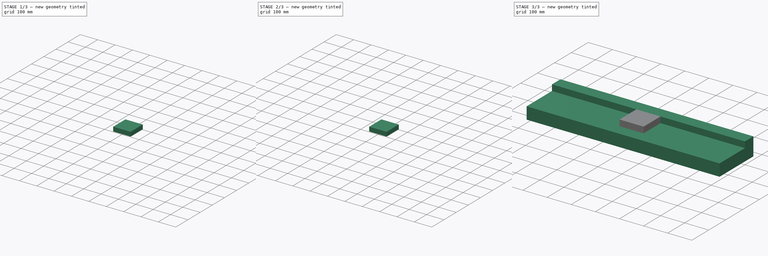
[diagram: build sequence overview — one tinted view per stage of 3, left to right]
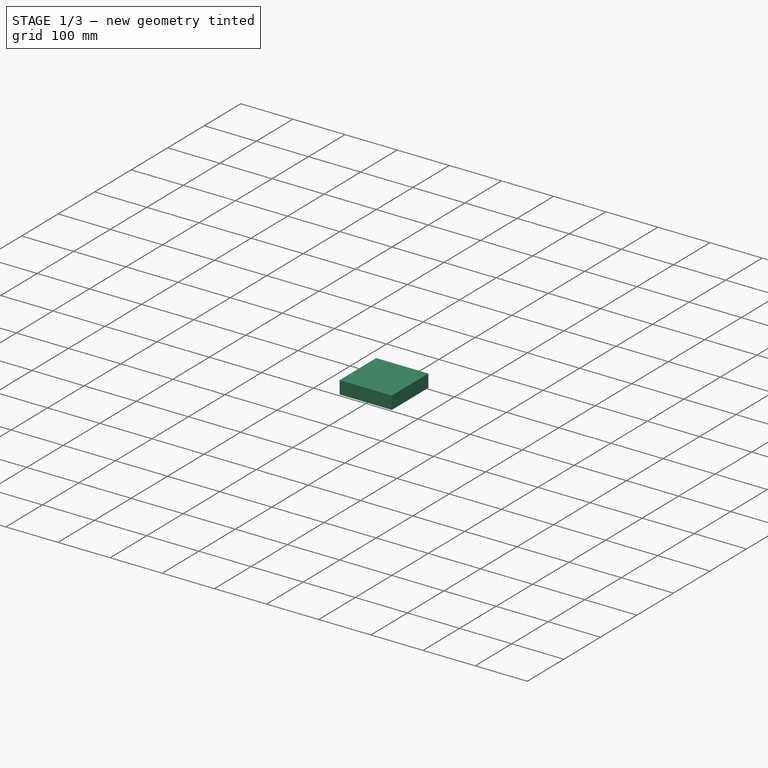
[diagram: stage 1 of 3 — iso view after this stage's code; geometry added in this stage tinted green]
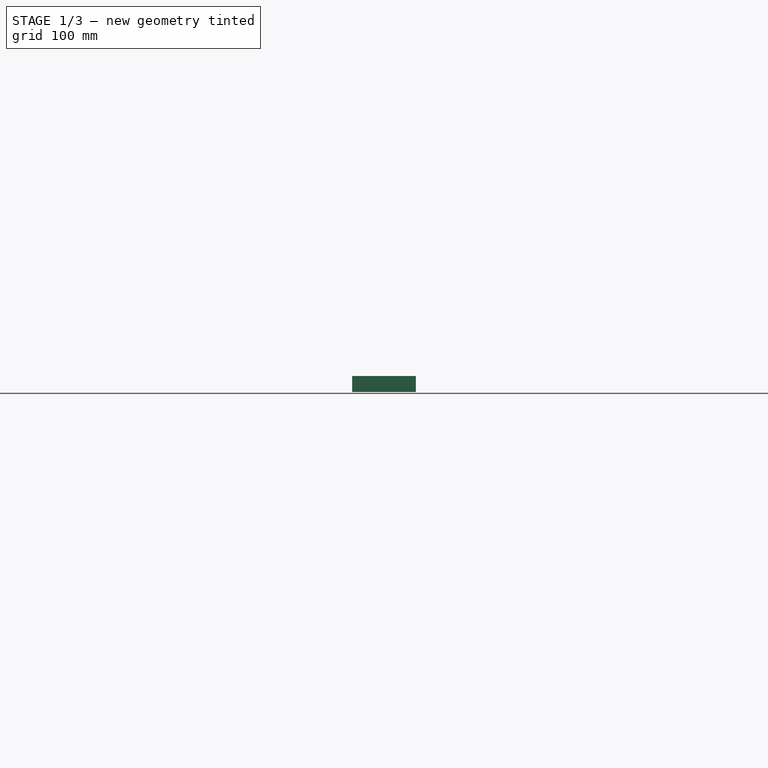
[diagram: stage 1 of 3 — front view after this stage's code; geometry added in this stage tinted green]
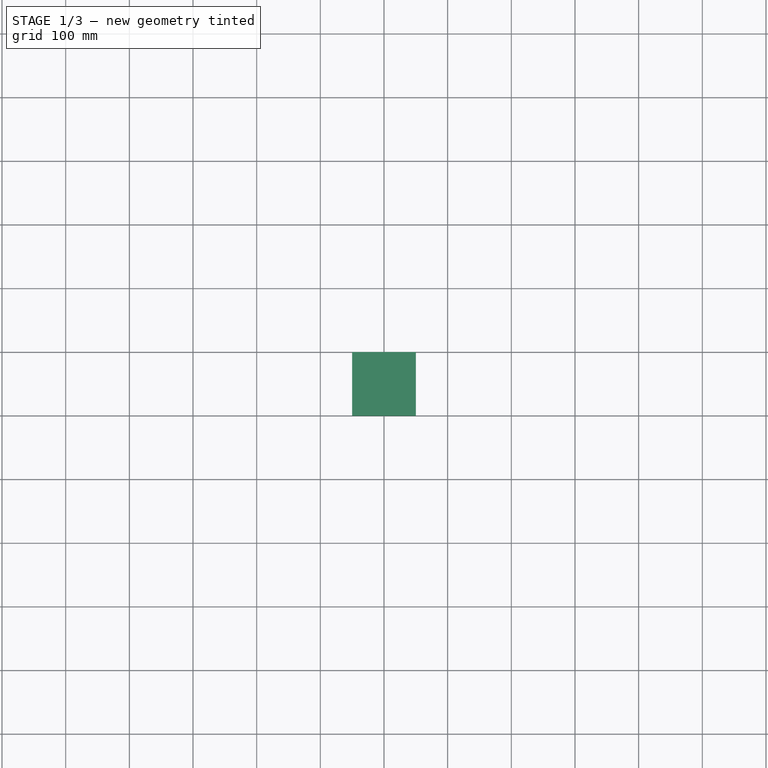
[diagram: stage 1 of 3 — top view after this stage's code; geometry added in this stage tinted green]
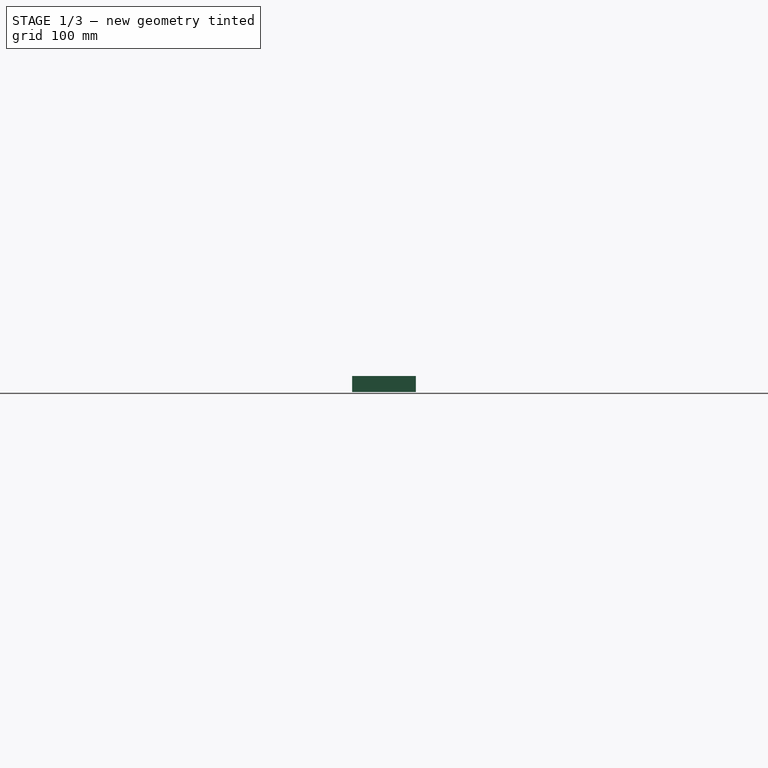
[diagram: stage 1 of 3 — right view after this stage's code; geometry added in this stage tinted green]
FCSTD DOCUMENT  (FreeCAD 2020.12.03R23076 +2885 (Git))
Label: Modular Ramp v2
License: All rights reserved
LicenseURL: http://en.wikipedia.org/wiki/All_rights_reserved
objects: Sketcher::SketchObject×7, PartDesign::Body×5, PartDesign::Pad×4, PartDesign::Plane×2, PartDesign::ShapeBinder×1, PartDesign::Extrusion×1, PartDesign::Pocket×1
note: 33 computed .brp shape members not serialized (recipe doc carries the construction recipe); baked Part::Feature solids carry a one-line shape summary decoded from their .brp

FEATURE [Sketcher::SketchObject] CopySketch001
  ExternalGeometry = -> [ShapeBinder]
  Placement = pos=(0,0,0) rot=(0.57735,0.57735,0.57735;2.0944rad)
  sketch-geometry (4):
    g0: LineSegment StartX=0 StartY=25 StartZ=0 EndX=0 EndY=0 EndZ=0
    g1: LineSegment StartX=0 StartY=0 StartZ=0 EndX=-100 EndY=0 EndZ=0
    g2: LineSegment StartX=-100 StartY=0 StartZ=0 EndX=-100 EndY=25 EndZ=0
    g3: LineSegment StartX=-100 StartY=25 StartZ=0 EndX=0 EndY=25 EndZ=0
  constraints (9):
    c: Coincident(g0,g1)
    c: Coincident(g1,g2)
    c: Vertical(g2)
    c: Coincident(g3,g0)
    c: Horizontal(g3)
    c: Coincident(g0,g-1)
    c: Horizontal(g1)
    c: DistanceX(g1,g1) = 100
    c: Coincident(g3,g2)
FEATURE [PartDesign::Body] Body002  label="Fill01"
  ExportMode = 0
  Group = -> [Sketch003,Pad001,CopySketch001]
  Origin = -> Origin002
  Tip = -> Pad001
  _ExportChildren = -> [Pad001,CopySketch001]
  _GroupVersion = 1
FEATURE [PartDesign::Pad] Pad002
  ClaimChildren = false
  Direction = (1,1,1)
  Fit = 0
  FitJoin = 0
  InnerFit = 0
  InnerFitJoin = 0
  InnerTaperAngle = 0
  InnerTaperAngleRev = 0
  Length = 100
  Length2 = 100
  Midplane = true
  NewSolid = false
  Placement = pos=(0,0,0) rot=(0.57735,0.57735,0.57735;2.0944rad)
  Profile = -> Sketch001
  Suppress = false
  Type = 0
FEATURE [PartDesign::Body] Body003  label="Fill02"
  ExportMode = 0
  Group = -> [Sketch004,Pad003]
  Origin = -> Origin003
  Tip = -> Pad003
  _ExportChildren = -> [Pad003]
  _GroupVersion = 1
FEATURE [PartDesign::Pocket] Pocket
  BaseFeature = -> Pad002
  ClaimChildren = false
  Fit = 0
  FitJoin = 0
  InnerFit = 0
  InnerFitJoin = 0
  InnerTaperAngle = 0
  InnerTaperAngleRev = 0
  Length = 23
  Length2 = 100
  NewSolid = false
  Placement = pos=(0,0,0) rot=(0.57735,0.57735,0.57735;2.0944rad)
  Profile = -> Sketch004
  Reversed = true
  Suppress = true
  Type = 0
  expr: Length = DatumPlane.AttachmentOffset.Base.z - DatumPlane001.AttachmentOffset.Base.z
FEATURE [PartDesign::Body] Body001  label="Ramp01"
  ExportMode = 0
  Group = -> [ShapeBinder,Sketch001,Sketch002,Pad002,Sketch004,Pocket]
  Origin = -> Origin001
  Tip = -> Pocket
  _ExportChildren = -> [ShapeBinder,Sketch002,Pad002,Pocket]
  _GroupVersion = 1
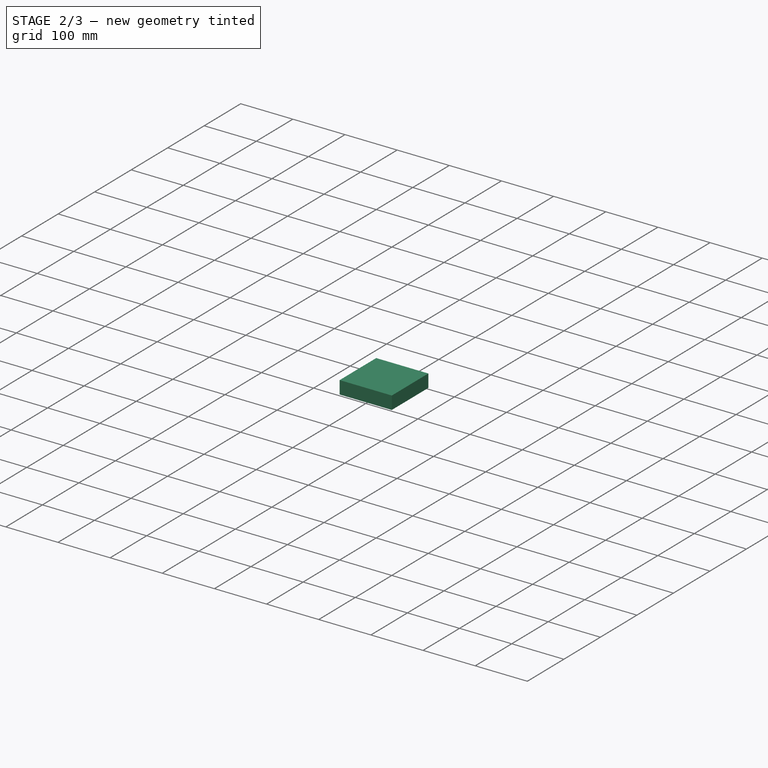
[diagram: stage 2 of 3 — iso view after this stage's code; geometry added in this stage tinted green]
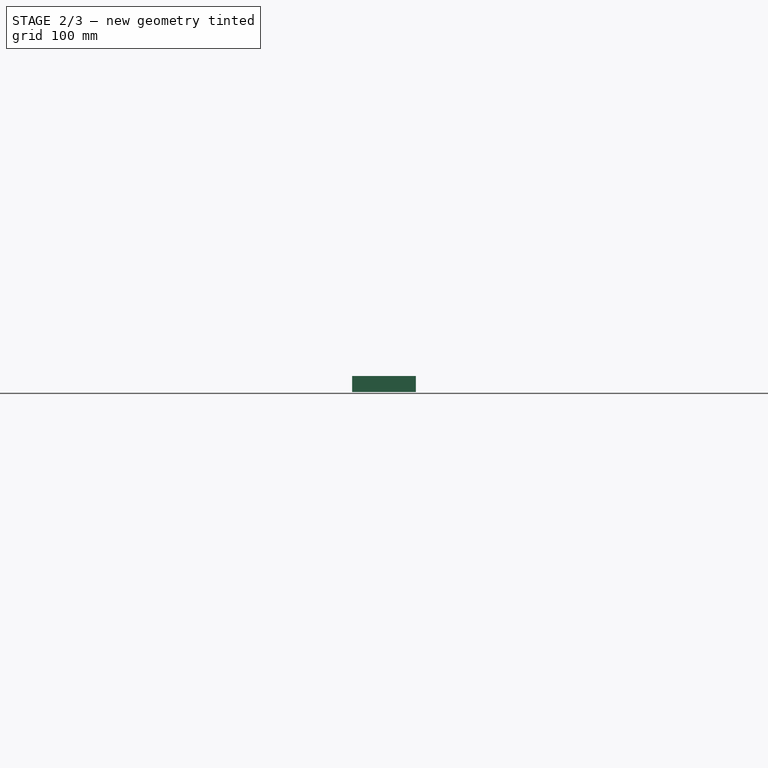
[diagram: stage 2 of 3 — front view after this stage's code; geometry added in this stage tinted green]
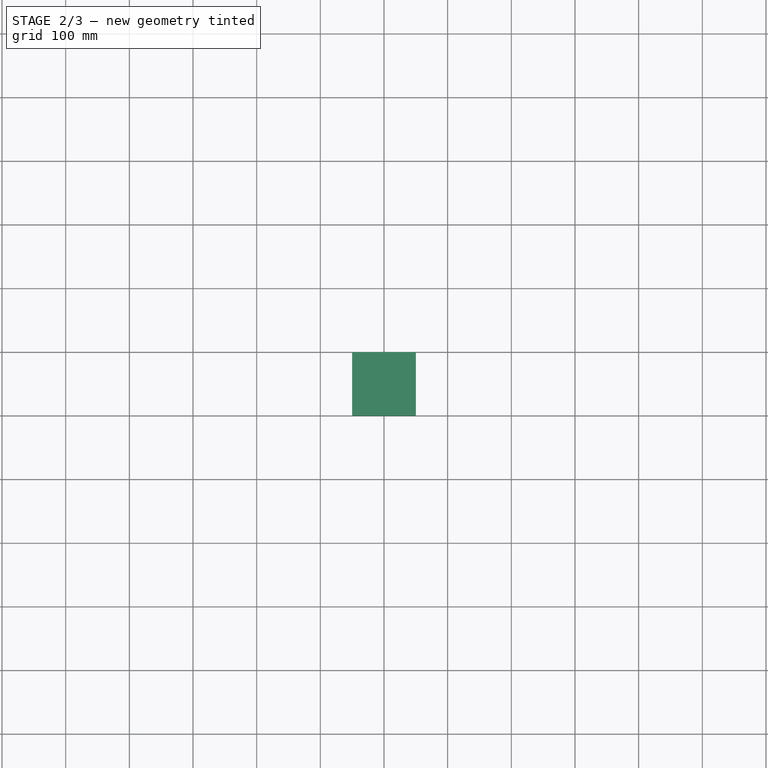
[diagram: stage 2 of 3 — top view after this stage's code; geometry added in this stage tinted green]
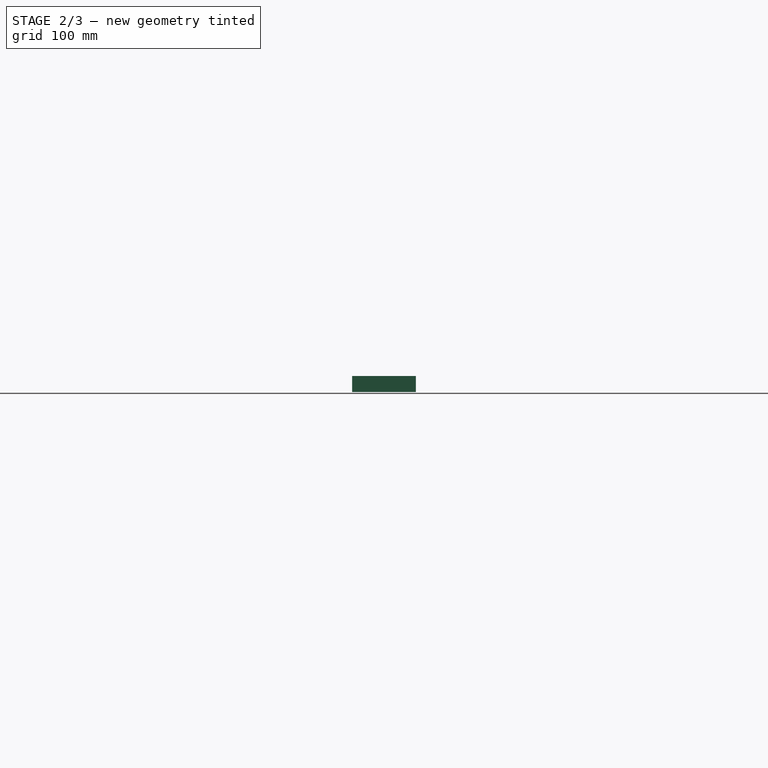
[diagram: stage 2 of 3 — right view after this stage's code; geometry added in this stage tinted green]
FEATURE [PartDesign::Body] Body004  label="OutcomeBody"
  ExportMode = 0
  Origin = -> Origin004
  _GroupVersion = 1
FEATURE [Sketcher::SketchObject] Sketch004
  MapMode = 5
  Support = -> [XY_Plane001]
  sketch-geometry (49):
    g0: LineSegment StartX=-45 StartY=-5 StartZ=0 EndX=-43 EndY=-5 EndZ=0
    g1: LineSegment StartX=-43 StartY=-5 StartZ=0 EndX=-43 EndY=-7 EndZ=0
    g2: LineSegment StartX=-43 StartY=-7 StartZ=0 EndX=-45 EndY=-7 EndZ=0
    g3: LineSegment StartX=-45 StartY=-7 StartZ=0 EndX=-45 EndY=-5 EndZ=0
    g4: LineSegment [constr] StartX=-50 StartY=0 StartZ=0 EndX=-50 EndY=-22.095 EndZ=0
    g5: LineSegment [constr] StartX=-50 StartY=0 StartZ=0 EndX=-45 EndY=0 EndZ=0
    g6: LineSegment [constr] StartX=-45 StartY=0 StartZ=0 EndX=-45 EndY=-5 EndZ=0
    g7: LineSegment [constr] StartX=-45 StartY=-5 StartZ=0 EndX=-50 EndY=-5 EndZ=0
    g8: LineSegment [constr] StartX=-50 StartY=-5 StartZ=0 EndX=-50 EndY=0 EndZ=0
    g9: LineSegment [constr] StartX=-43 StartY=-7 StartZ=0 EndX=-38 EndY=-7 EndZ=0
    g10: LineSegment [constr] StartX=-38 StartY=-7 StartZ=0 EndX=-38 EndY=-12 EndZ=0
    g11: LineSegment [constr] StartX=-38 StartY=-12 StartZ=0 EndX=-43 EndY=-12 EndZ=0
    g12: LineSegment [constr] StartX=-43 StartY=-12 StartZ=0 EndX=-43 EndY=-7 EndZ=0
    g13: LineSegment StartX=-38 StartY=-7 StartZ=0 EndX=-36 EndY=-7 EndZ=0
    g14: LineSegment StartX=-36 StartY=-7 StartZ=0 EndX=-36 EndY=-5 EndZ=0
    g15: LineSegment StartX=-36 StartY=-5 StartZ=0 EndX=-38 EndY=-5 EndZ=0
    g16: LineSegment StartX=-38 StartY=-5 StartZ=0 EndX=-38 EndY=-7 EndZ=0
    g17: LineSegment StartX=-31 StartY=-5 StartZ=0 EndX=-29 EndY=-5 EndZ=0
    g18: LineSegment StartX=-29 StartY=-5 StartZ=0 EndX=-29 EndY=-7 EndZ=0
    g19: LineSegment StartX=-29 StartY=-7 StartZ=0 EndX=-31 EndY=-7 EndZ=0
    g20: LineSegment StartX=-31 StartY=-7 StartZ=0 EndX=-31 EndY=-5 EndZ=0
    g21: LineSegment StartX=-24 StartY=-5 StartZ=0 EndX=-22 EndY=-5 EndZ=0
    g22: LineSegment StartX=-22 StartY=-5 StartZ=0 EndX=-22 EndY=-7 EndZ=0
    g23: LineSegment StartX=-22 StartY=-7 StartZ=0 EndX=-24 EndY=-7 EndZ=0
    g24: LineSegment StartX=-24 StartY=-7 StartZ=0 EndX=-24 EndY=-5 EndZ=0
    g25: LineSegment StartX=-38 StartY=-12 StartZ=0 EndX=-36 EndY=-12 EndZ=0
    g26: LineSegment StartX=-36 StartY=-12 StartZ=0 EndX=-36 EndY=-14 EndZ=0
    g27: LineSegment StartX=-36 StartY=-14 StartZ=0 EndX=-38 EndY=-14 EndZ=0
    g28: LineSegment StartX=-38 StartY=-14 StartZ=0 EndX=-38 EndY=-12 EndZ=0
    g29: LineSegment StartX=-43 StartY=-12 StartZ=0 EndX=-45 EndY=-12 EndZ=0
    g30: LineSegment StartX=-45 StartY=-12 StartZ=0 EndX=-45 EndY=-14 EndZ=0
    g31: LineSegment StartX=-45 StartY=-14 StartZ=0 EndX=-43 EndY=-14 EndZ=0
    g32: LineSegment StartX=-43 StartY=-14 StartZ=0 EndX=-43 EndY=-12 EndZ=0
    g33: LineSegment StartX=-31 StartY=-12 StartZ=0 EndX=-29 EndY=-12 EndZ=0
    g34: LineSegment StartX=-29 StartY=-12 StartZ=0 EndX=-29 EndY=-14 EndZ=0
    g35: LineSegment StartX=-29 StartY=-14 StartZ=0 EndX=-31 EndY=-14 EndZ=0
    g36: LineSegment StartX=-31 StartY=-14 StartZ=0 EndX=-31 EndY=-12 EndZ=0
    g37: LineSegment StartX=-24 StartY=-12 StartZ=0 EndX=-22 EndY=-12 EndZ=0
    g38: LineSegment StartX=-22 StartY=-12 StartZ=0 EndX=-22 EndY=-14 EndZ=0
    g39: LineSegment StartX=-22 StartY=-14 StartZ=0 EndX=-24 EndY=-14 EndZ=0
    g40: LineSegment StartX=-24 StartY=-14 StartZ=0 EndX=-24 EndY=-12 EndZ=0
    g41: LineSegment [constr] StartX=-36 StartY=-7 StartZ=0 EndX=-31 EndY=-7 EndZ=0
    g42: LineSegment [constr] StartX=-31 StartY=-7 StartZ=0 EndX=-31 EndY=-12 EndZ=0
    g43: LineSegment [constr] StartX=-31 StartY=-12 StartZ=0 EndX=-36 EndY=-12 EndZ=0
    g44: LineSegment [constr] StartX=-36 StartY=-12 StartZ=0 EndX=-36 EndY=-7 EndZ=0
    g45: LineSegment [constr] StartX=-29 StartY=-7 StartZ=0 EndX=-24 EndY=-7 EndZ=0
    g46: LineSegment [constr] StartX=-24 StartY=-7 StartZ=0 EndX=-24 EndY=-12 EndZ=0
    g47: LineSegment [constr] StartX=-24 StartY=-12 StartZ=0 EndX=-29 EndY=-12 EndZ=0
    g48: LineSegment [constr] StartX=-29 StartY=-12 StartZ=0 EndX=-29 EndY=-7 EndZ=0
  constraints (137):
    c: Coincident(g0,g1)
    c: Coincident(g1,g2)
    c: Coincident(g2,g3)
    c: Coincident(g3,g0)
    c: Horizontal(g0)
    c: Horizontal(g2)
    c: Vertical(g1)
    c: Vertical(g3)
    c: Equal(g0,g3)
    c: PointOnObject(g4,g-1)
    c: Vertical(g4)
    c: DistanceX(g4,g-1) = 50
    c: Coincident(g5,g6)
    c: Coincident(g6,g7)
    c: Coincident(g7,g8)
    c: Coincident(g8,g5)
    c: Horizontal(g5)
    c: Horizontal(g7)
    c: Vertical(g6)
    c: Vertical(g8)
    c: Coincident(g5,g4)
    c: Equal(g6,g7)
    c: DistanceX(g5,g5) = 5
    c: Coincident(g0,g6)
    c: DistanceX(g0,g0) = 2
    c: Coincident(g9,g10)
    c: Coincident(g10,g11)
    c: Coincident(g11,g12)
    c: Coincident(g12,g9)
    c: Horizontal(g9)
    c: Horizontal(g11)
    c: Vertical(g10)
    c: Vertical(g12)
    c: Coincident(g9,g1)
    c: Coincident(g13,g14)
    c: Coincident(g14,g15)
    c: Coincident(g15,g16)
    c: Coincident(g16,g13)
    c: Horizontal(g13)
    c: Horizontal(g15)
    c: Vertical(g14)
    c: Vertical(g16)
    c: Coincident(g13,g9)
    c: Coincident(g17,g18)
    c: Coincident(g18,g19)
    c: Coincident(g19,g20)
    c: Coincident(g20,g17)
    c: Horizontal(g17)
    c: Horizontal(g19)
    c: Vertical(g18)
    c: Vertical(g20)
    c: Coincident(g21,g22)
    c: Coincident(g22,g23)
    c: Coincident(g23,g24)
    c: Coincident(g24,g21)
    c: Horizontal(g21)
    c: Horizontal(g23)
    c: Vertical(g22)
    c: Vertical(g24)
    c: Coincident(g25,g26)
    c: Coincident(g26,g27)
    c: Coincident(g27,g28)
    c: Coincident(g28,g25)
    c: Horizontal(g25)
    c: Horizontal(g27)
    c: Vertical(g26)
    c: Vertical(g28)
    c: Coincident(g25,g10)
    c: Coincident(g29,g30)
    c: Coincident(g30,g31)
    c: Coincident(g31,g32)
    c: Coincident(g32,g29)
    c: Horizontal(g29)
    c: Horizontal(g31)
    c: Vertical(g30)
    c: Vertical(g32)
    c: Coincident(g29,g11)
    c: Coincident(g33,g34)
    c: Coincident(g34,g35)
    c: Coincident(g35,g36)
    c: Coincident(g36,g33)
    c: Horizontal(g33)
    c: Horizontal(g35)
    c: Vertical(g34)
    c: Vertical(g36)
    c: Coincident(g37,g38)
    c: Coincident(g38,g39)
    c: Coincident(g39,g40)
    c: Coincident(g40,g37)
    c: Horizontal(g37)
    c: Horizontal(g39)
    c: Vertical(g38)
    c: Vertical(g40)
    c: Equal(g9,g12)
    c: Equal(g9,g7)
    c: Equal(g0,g15)
    c: Equal(g15,g17)
    c: Equal(g21,g17)
    c: Horizontal(g15,g0)
    c: Horizontal(g14,g17)
    c: Horizontal(g17,g21)
    c: Horizontal(g25,g33)
    c: Horizontal(g33,g37)
    c: Equal(g1,g32)
    c: Vertical(g13,g25)
    c: Vertical(g33,g19)
    c: Vertical(g18,g33)
    c: Vertical(g23,g37)
    c: Equal(g22,g18)
    c: Equal(g20,g14)
    c: Equal(g40,g34)
    c: Equal(g36,g26)
    c: Equal(g28,g32)
    c: Coincident(g41,g42)
    c: Coincident(g42,g43)
    c: Coincident(g43,g44)
    c: Coincident(g44,g41)
    c: Horizontal(g41)
    c: Horizontal(g43)
    c: Vertical(g42)
    c: Vertical(g44)
    c: Coincident(g41,g13)
    c: Coincident(g42,g33)
    c: Coincident(g45,g46)
    c: Coincident(g46,g47)
    c: Coincident(g47,g48)
    c: Coincident(g48,g45)
    c: Horizontal(g45)
    c: Horizontal(g47)
    c: Vertical(g46)
    c: Vertical(g48)
    c: Coincident(g45,g18)
    c: Coincident(g46,g37)
    c: Equal(g45,g43)
    c: Equal(g41,g9)
    c: Vertical(g37,g22)
    c: Vertical(g2,g29)
FEATURE [PartDesign::Plane] DatumPlane001
  AttachmentOffset = pos=(0,0,2) rot=(0,0,1;0rad)
  Length = 48.237
  MapMode = 5
  Placement = pos=(0,0,23) rot=(0.008727,0.999962,0;3.14159rad)
  ResizeMode = 0
  Support = -> [DatumPlane]
  Width = 14.8356
FEATURE [Sketcher::SketchObject] CopySketch004
  sketch-geometry (49):
    g0: LineSegment StartX=-48 StartY=-2 StartZ=0 EndX=-43 EndY=-2 EndZ=0
    g1: LineSegment StartX=-43 StartY=-2 StartZ=0 EndX=-43 EndY=-7 EndZ=0
    g2: LineSegment StartX=-43 StartY=-7 StartZ=0 EndX=-48 EndY=-7 EndZ=0
    g3: LineSegment StartX=-48 StartY=-7 StartZ=0 EndX=-48 EndY=-2 EndZ=0
    g4: LineSegment [constr] StartX=-50 StartY=0 StartZ=0 EndX=-50 EndY=-22.095 EndZ=0
    g5: LineSegment [constr] StartX=-50 StartY=0 StartZ=0 EndX=-48 EndY=0 EndZ=0
    g6: LineSegment [constr] StartX=-48 StartY=0 StartZ=0 EndX=-48 EndY=-2 EndZ=0
    g7: LineSegment [constr] StartX=-48 StartY=-2 StartZ=0 EndX=-50 EndY=-2 EndZ=0
    g8: LineSegment [constr] StartX=-50 StartY=-2 StartZ=0 EndX=-50 EndY=0 EndZ=0
    g9: LineSegment [constr] StartX=-43 StartY=-7 StartZ=0 EndX=-41 EndY=-7 EndZ=0
    g10: LineSegment [constr] StartX=-41 StartY=-7 StartZ=0 EndX=-41 EndY=-9 EndZ=0
    g11: LineSegment [constr] StartX=-41 StartY=-9 StartZ=0 EndX=-43 EndY=-9 EndZ=0
    g12: LineSegment [constr] StartX=-43 StartY=-9 StartZ=0 EndX=-43 EndY=-7 EndZ=0
    g13: LineSegment StartX=-41 StartY=-7 StartZ=0 EndX=-36 EndY=-7 EndZ=0
    g14: LineSegment StartX=-36 StartY=-7 StartZ=0 EndX=-36 EndY=-2 EndZ=0
    g15: LineSegment StartX=-36 StartY=-2 StartZ=0 EndX=-41 EndY=-2 EndZ=0
    g16: LineSegment StartX=-41 StartY=-2 StartZ=0 EndX=-41 EndY=-7 EndZ=0
    g17: LineSegment StartX=-34 StartY=-2 StartZ=0 EndX=-29 EndY=-2 EndZ=0
    g18: LineSegment StartX=-29 StartY=-2 StartZ=0 EndX=-29 EndY=-7 EndZ=0
    g19: LineSegment StartX=-29 StartY=-7 StartZ=0 EndX=-34 EndY=-7 EndZ=0
    g20: LineSegment StartX=-34 StartY=-7 StartZ=0 EndX=-34 EndY=-2 EndZ=0
    g21: LineSegment StartX=-27 StartY=-2 StartZ=0 EndX=-22 EndY=-2 EndZ=0
    g22: LineSegment StartX=-22 StartY=-2 StartZ=0 EndX=-22 EndY=-7 EndZ=0
    g23: LineSegment StartX=-22 StartY=-7 StartZ=0 EndX=-27 EndY=-7 EndZ=0
    g24: LineSegment StartX=-27 StartY=-7 StartZ=0 EndX=-27 EndY=-2 EndZ=0
    g25: LineSegment StartX=-41 StartY=-9 StartZ=0 EndX=-36 EndY=-9 EndZ=0
    g26: LineSegment StartX=-36 StartY=-9 StartZ=0 EndX=-36 EndY=-14 EndZ=0
    g27: LineSegment StartX=-36 StartY=-14 StartZ=0 EndX=-41 EndY=-14 EndZ=0
    g28: LineSegment StartX=-41 StartY=-14 StartZ=0 EndX=-41 EndY=-9 EndZ=0
    g29: LineSegment StartX=-43 StartY=-9 StartZ=0 EndX=-47.9878 EndY=-9 EndZ=0
    g30: LineSegment StartX=-47.9878 StartY=-9 StartZ=0 EndX=-47.9878 EndY=-14 EndZ=0
    g31: LineSegment StartX=-47.9878 StartY=-14 StartZ=0 EndX=-43 EndY=-14 EndZ=0
    g32: LineSegment StartX=-43 StartY=-14 StartZ=0 EndX=-43 EndY=-9 EndZ=0
    g33: LineSegment StartX=-34 StartY=-9 StartZ=0 EndX=-29 EndY=-9 EndZ=0
    g34: LineSegment StartX=-29 StartY=-9 StartZ=0 EndX=-29 EndY=-14 EndZ=0
    g35: LineSegment StartX=-29 StartY=-14 StartZ=0 EndX=-34 EndY=-14 EndZ=0
    g36: LineSegment StartX=-34 StartY=-14 StartZ=0 EndX=-34 EndY=-9 EndZ=0
    g37: LineSegment StartX=-27 StartY=-9 StartZ=0 EndX=-22 EndY=-9 EndZ=0
    g38: LineSegment StartX=-22 StartY=-9 StartZ=0 EndX=-22 EndY=-14 EndZ=0
    g39: LineSegment StartX=-22 StartY=-14 StartZ=0 EndX=-27 EndY=-14 EndZ=0
    g40: LineSegment StartX=-27 StartY=-14 StartZ=0 EndX=-27 EndY=-9 EndZ=0
    g41: LineSegment [constr] StartX=-36 StartY=-7 StartZ=0 EndX=-34 EndY=-7 EndZ=0
    g42: LineSegment [constr] StartX=-34 StartY=-7 StartZ=0 EndX=-34 EndY=-9 EndZ=0
    g43: LineSegment [constr] StartX=-34 StartY=-9 StartZ=0 EndX=-36 EndY=-9 EndZ=0
    g44: LineSegment [constr] StartX=-36 StartY=-9 StartZ=0 EndX=-36 EndY=-7 EndZ=0
    g45: LineSegment [constr] StartX=-29 StartY=-7 StartZ=0 EndX=-27 EndY=-7 EndZ=0
    g46: LineSegment [constr] StartX=-27 StartY=-7 StartZ=0 EndX=-27 EndY=-9 EndZ=0
    g47: LineSegment [constr] StartX=-27 StartY=-9 StartZ=0 EndX=-29 EndY=-9 EndZ=0
    g48: LineSegment [constr] StartX=-29 StartY=-9 StartZ=0 EndX=-29 EndY=-7 EndZ=0
  constraints (136):
    c: Coincident(g0,g1)
    c: Coincident(g1,g2)
    c: Coincident(g2,g3)
    c: Coincident(g3,g0)
    c: Horizontal(g0)
    c: Horizontal(g2)
    c: Vertical(g1)
    c: Vertical(g3)
    c: Equal(g0,g3)
    c: PointOnObject(g4,g-1)
    c: Vertical(g4)
    c: DistanceX(g4,g-1) = 50
    c: Coincident(g5,g6)
    c: Coincident(g6,g7)
    c: Coincident(g7,g8)
    c: Coincident(g8,g5)
    c: Horizontal(g5)
    c: Horizontal(g7)
    c: Vertical(g6)
    c: Vertical(g8)
    c: Coincident(g5,g4)
    c: Equal(g6,g7)
    c: DistanceX(g5,g5) = 2
    c: Coincident(g0,g6)
    c: DistanceX(g0,g0) = 5
    c: Coincident(g9,g10)
    c: Coincident(g10,g11)
    c: Coincident(g11,g12)
    c: Coincident(g12,g9)
    c: Horizontal(g9)
    c: Horizontal(g11)
    c: Vertical(g10)
    c: Vertical(g12)
    c: Coincident(g9,g1)
    c: Coincident(g13,g14)
    c: Coincident(g14,g15)
    c: Coincident(g15,g16)
    c: Coincident(g16,g13)
    c: Horizontal(g13)
    c: Horizontal(g15)
    c: Vertical(g14)
    c: Vertical(g16)
    c: Coincident(g13,g9)
    c: Coincident(g17,g18)
    c: Coincident(g18,g19)
    c: Coincident(g19,g20)
    c: Coincident(g20,g17)
    c: Horizontal(g17)
    c: Horizontal(g19)
    c: Vertical(g18)
    c: Vertical(g20)
    c: Coincident(g21,g22)
    c: Coincident(g22,g23)
    c: Coincident(g23,g24)
    c: Coincident(g24,g21)
    c: Horizontal(g21)
    c: Horizontal(g23)
    c: Vertical(g22)
    c: Vertical(g24)
    c: Coincident(g25,g26)
    c: Coincident(g26,g27)
    c: Coincident(g27,g28)
    c: Coincident(g28,g25)
    c: Horizontal(g25)
    c: Horizontal(g27)
    c: Vertical(g26)
    c: Vertical(g28)
    c: Coincident(g25,g10)
    c: Coincident(g29,g30)
    c: Coincident(g30,g31)
    c: Coincident(g31,g32)
    c: Coincident(g32,g29)
    c: Horizontal(g29)
    c: Horizontal(g31)
    c: Vertical(g30)
    c: Vertical(g32)
    c: Coincident(g29,g11)
    c: Coincident(g33,g34)
    c: Coincident(g34,g35)
    c: Coincident(g35,g36)
    c: Coincident(g36,g33)
    c: Horizontal(g33)
    c: Horizontal(g35)
    c: Vertical(g34)
    c: Vertical(g36)
    c: Coincident(g37,g38)
    c: Coincident(g38,g39)
    c: Coincident(g39,g40)
    c: Coincident(g40,g37)
    c: Horizontal(g37)
    c: Horizontal(g39)
    c: Vertical(g38)
    c: Vertical(g40)
    c: Equal(g9,g12)
    c: Equal(g9,g7)
    c: Equal(g0,g15)
    c: Equal(g15,g17)
    c: Equal(g21,g17)
    c: Horizontal(g15,g0)
    c: Horizontal(g14,g17)
    c: Horizontal(g17,g21)
    c: Horizontal(g25,g33)
    c: Horizontal(g33,g37)
    c: Equal(g1,g32)
    c: Vertical(g13,g25)
    c: Vertical(g33,g19)
    c: Vertical(g18,g33)
    c: Vertical(g23,g37)
    c: Equal(g22,g18)
    c: Equal(g20,g14)
    c: Equal(g40,g34)
    c: Equal(g36,g26)
    c: Equal(g28,g32)
    c: Coincident(g41,g42)
    c: Coincident(g42,g43)
    c: Coincident(g43,g44)
    c: Coincident(g44,g41)
    c: Horizontal(g41)
    c: Horizontal(g43)
    c: Vertical(g42)
    c: Vertical(g44)
    c: Coincident(g41,g13)
    c: Coincident(g42,g33)
    c: Coincident(g45,g46)
    c: Coincident(g46,g47)
    c: Coincident(g47,g48)
    c: Coincident(g48,g45)
    c: Horizontal(g45)
    c: Horizontal(g47)
    c: Vertical(g46)
    c: Vertical(g48)
    c: Coincident(g45,g18)
    c: Coincident(g46,g37)
    c: Equal(g45,g43)
    c: Equal(g41,g9)
    c: Vertical(g37,g22)
FEATURE [PartDesign::Extrusion] Extrusion
  ClaimChildren = false
  Direction = (1,1,1)
  Fit = 0
  FitJoin = 0
  InnerFit = 0
  InnerFitJoin = 0
  InnerTaperAngle = 0
  InnerTaperAngleRev = 0
  Length = 10
  Length2 = 100
  NewSolid = false
  Profile = -> CopySketch004
  Suppress = true
  Type = 3
  UpToFace = -> DatumPlane001
FEATURE [PartDesign::Body] Body  label="Floor"
  ExportMode = 0
  Group = -> [DatumPlane,Sketch,Pad,DatumPlane001,CopySketch004,Extrusion]
  Origin = -> Origin
  Tip = -> Pad
  _ExportChildren = -> [DatumPlane,Pad,DatumPlane001,CopySketch004,Extrusion]
  _GroupVersion = 1
FEATURE [PartDesign::Pad] Pad003
  ClaimChildren = false
  Direction = (1,1,1)
  Fit = 0
  FitJoin = 0
  InnerFit = 0
  InnerFitJoin = 0
  InnerTaperAngle = 0
  InnerTaperAngleRev = 0
  Length = 18
  Length2 = 100
  NewSolid = false
  Profile = -> Sketch004
  Suppress = false
  Type = 0
  expr: Length = DatumPlane.AttachmentOffset.Base.z - DatumPlane001.AttachmentOffset.Base.z - 5
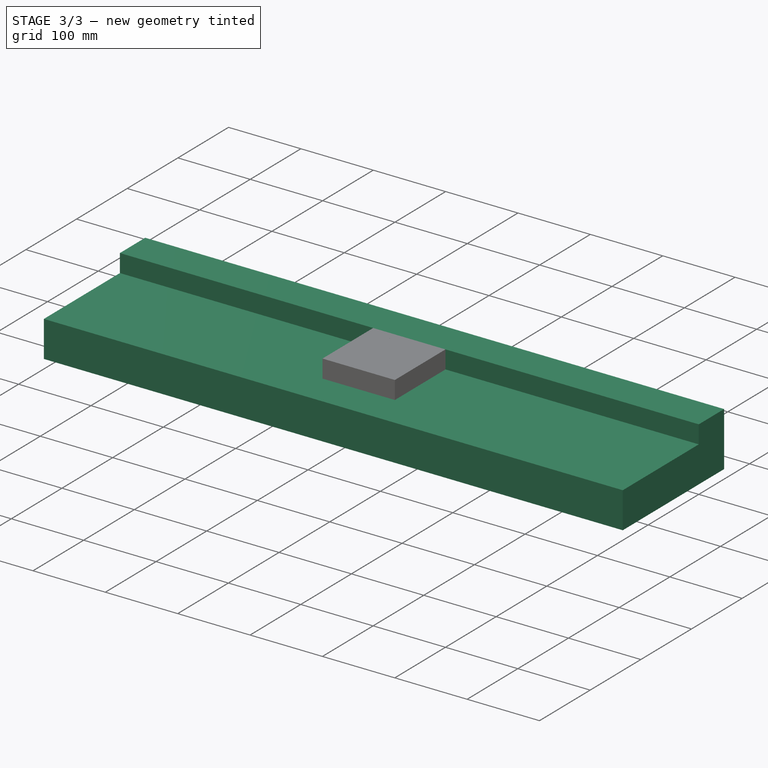
[diagram: stage 3 of 3 — iso view after this stage's code; geometry added in this stage tinted green]
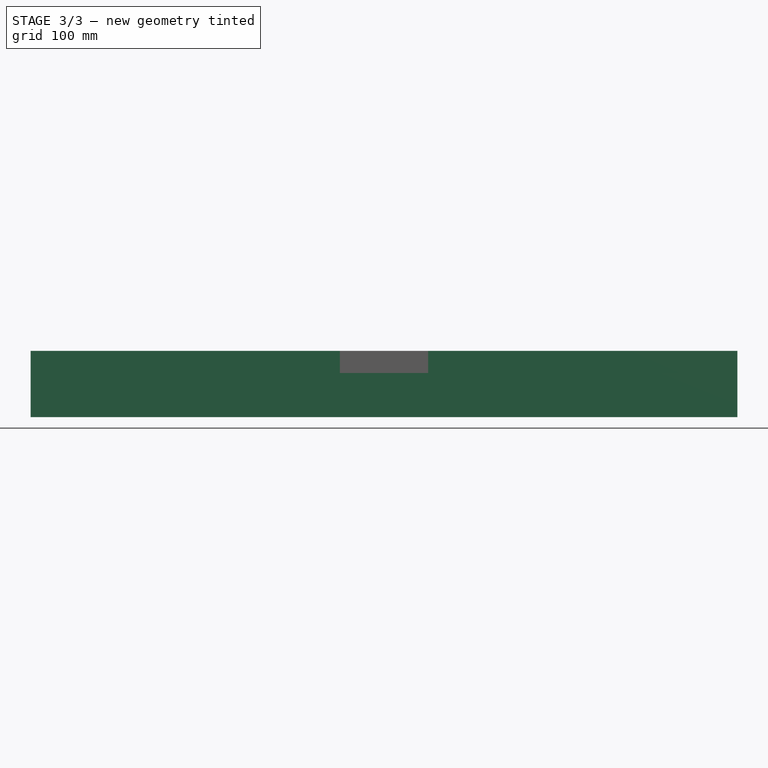
[diagram: stage 3 of 3 — front view after this stage's code; geometry added in this stage tinted green]
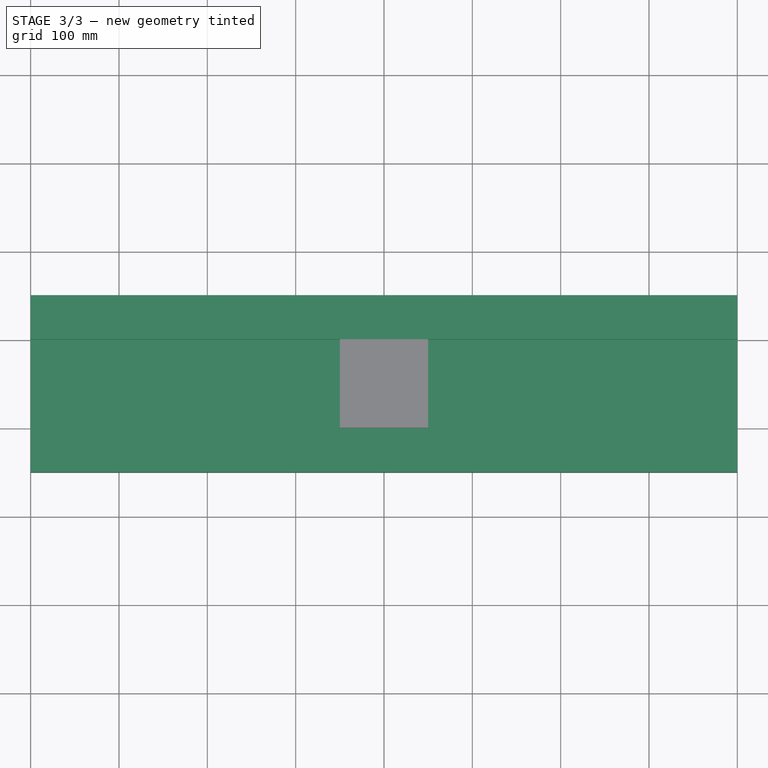
[diagram: stage 3 of 3 — top view after this stage's code; geometry added in this stage tinted green]
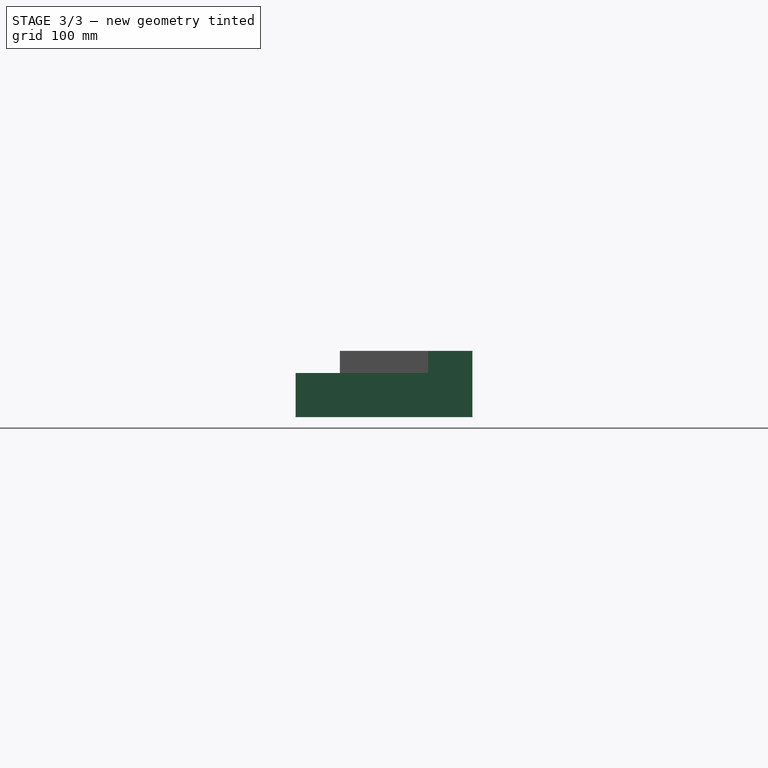
[diagram: stage 3 of 3 — right view after this stage's code; geometry added in this stage tinted green]
FEATURE [PartDesign::Plane] DatumPlane
  AttachmentOffset = pos=(0,0,25) rot=(0,0,-1;0.017453rad)
  Length = 48.237
  MapMode = 5
  Placement = pos=(0,0,25) rot=(0,0,-1;0.017453rad)
  ResizeMode = 0
  Support = -> [XY_Plane]
  Width = 14.8356
FEATURE [Sketcher::SketchObject] Sketch
  ExternalGeometry = -> [DatumPlane]
  MapMode = 5
  Placement = pos=(0,0,0) rot=(0.57735,0.57735,0.57735;2.0944rad)
  Support = -> [YZ_Plane]
  sketch-geometry (6):
    g0: LineSegment StartX=-150 StartY=0 StartZ=0 EndX=0 EndY=0 EndZ=0
    g1: LineSegment StartX=0 StartY=0 StartZ=0 EndX=0 EndY=25 EndZ=0
    g2: LineSegment StartX=0 StartY=25 StartZ=0 EndX=50 EndY=25 EndZ=0
    g3: LineSegment StartX=-150 StartY=0 StartZ=0 EndX=-150 EndY=-49.9976 EndZ=0
    g4: LineSegment StartX=50 StartY=25 StartZ=0 EndX=50 EndY=-49.9976 EndZ=0
    g5: LineSegment StartX=50 StartY=-49.9976 StartZ=0 EndX=-150 EndY=-49.9976 EndZ=0
  constraints (16):
    c: PointOnObject(g0,g-1)
    c: Coincident(g0,g-1)
    c: Coincident(g0,g1)
    c: PointOnObject(g1,g-2)
    c: Coincident(g1,g2)
    c: Horizontal(g2)
    c: DistanceX(g0,g0) = 150
    c: DistanceX(g2,g2) = 50
    c: Coincident(g0,g3)
    c: Vertical(g3)
    c: Coincident(g2,g4)
    c: Vertical(g4)
    c: Coincident(g4,g5)
    c: Coincident(g5,g3)
    c: Horizontal(g5)
    c: PointOnObject(g1,g-3)
FEATURE [PartDesign::Pad] Pad
  ClaimChildren = false
  Direction = (1,1,1)
  Fit = 0
  FitJoin = 0
  InnerFit = 0
  InnerFitJoin = 0
  InnerTaperAngle = 0
  InnerTaperAngleRev = 0
  Length = 800
  Length2 = 100
  Midplane = true
  NewSolid = false
  Placement = pos=(0,0,0) rot=(0.57735,0.57735,0.57735;2.0944rad)
  Profile = -> Sketch
  Suppress = false
  Type = 0
FEATURE [PartDesign::ShapeBinder] ShapeBinder
  Placement = pos=(0,0,0) rot=(0.57735,0.57735,0.57735;2.0944rad)
  Support = -> [Sketch]
  TraceSupport = false
FEATURE [Sketcher::SketchObject] Sketch001
  ExternalGeometry = -> [ShapeBinder]
  MapMode = 5
  Placement = pos=(0,0,0) rot=(0.57735,0.57735,0.57735;2.0944rad)
  Support = -> [YZ_Plane001]
  sketch-geometry (4):
    g0: LineSegment StartX=0 StartY=25 StartZ=0 EndX=0 EndY=0 EndZ=0
    g1: LineSegment StartX=0 StartY=0 StartZ=0 EndX=-100 EndY=0 EndZ=0
    g2: LineSegment StartX=-100 StartY=0 StartZ=0 EndX=-100 EndY=25 EndZ=0
    g3: LineSegment StartX=-100 StartY=25 StartZ=0 EndX=0 EndY=25 EndZ=0
  constraints (10):
    c: Coincident(g0,g1)
    c: Coincident(g1,g2)
    c: Vertical(g2)
    c: Coincident(g3,g0)
    c: Horizontal(g3)
    c: Coincident(g0,g-1)
    c: Coincident(g0,g-3)
    c: Horizontal(g1)
    c: DistanceX(g1,g1) = 100
    c: Coincident(g3,g2)
FEATURE [Sketcher::SketchObject] Sketch002
  MapMode = 5
  Support = -> [XY_Plane001]
  sketch-geometry (50):
    g0: LineSegment StartX=-35 StartY=50 StartZ=0 EndX=-50 EndY=65 EndZ=0
    g1: LineSegment StartX=-50 StartY=65 StartZ=0 EndX=-65 EndY=50 EndZ=0
    g2: LineSegment StartX=-65 StartY=50 StartZ=0 EndX=-50 EndY=35 EndZ=0
    g3: LineSegment StartX=-50 StartY=35 StartZ=0 EndX=-35 EndY=50 EndZ=0
    g4: Circle [constr] CenterX=-50 CenterY=50 CenterZ=0 NormalX=0 NormalY=0 NormalZ=1 AngleXU=0 Radius=15
    g5: LineSegment [constr] StartX=-70.2763 StartY=50 StartZ=0 EndX=-8.70663 EndY=50 EndZ=0
    g6: LineSegment [constr] StartX=-50 StartY=32.3177 StartZ=0 EndX=-50 EndY=-12.0062 EndZ=0
    g7: GeomPoint X=-50 Y=50 Z=0
    g8: LineSegment [constr] StartX=-50 StartY=35 StartZ=0 EndX=-12.0188 EndY=35 EndZ=0
    g9: LineSegment StartX=-12.0188 StartY=65 StartZ=0 EndX=-27.0188 EndY=50 EndZ=0
    g10: LineSegment StartX=2.98118 StartY=50 StartZ=0 EndX=-12.0188 EndY=65 EndZ=0
    g11: LineSegment StartX=-27.0188 StartY=50 StartZ=0 EndX=-12.0188 EndY=35 EndZ=0
    g12: LineSegment StartX=-12.0188 StartY=35 StartZ=0 EndX=2.98118 EndY=50 EndZ=0
    g13: LineSegment [constr] StartX=-50 StartY=65 StartZ=0 EndX=-12.0188 EndY=65 EndZ=0
    g14: LineSegment StartX=25.9624 StartY=65 StartZ=0 EndX=10.9624 EndY=50 EndZ=0
    g15: LineSegment StartX=40.9624 StartY=50 StartZ=0 EndX=25.9624 EndY=65 EndZ=0
    g16: LineSegment StartX=10.9624 StartY=50 StartZ=0 EndX=25.9624 EndY=35 EndZ=0
    g17: LineSegment StartX=25.9624 StartY=35 StartZ=0 EndX=40.9624 EndY=50 EndZ=0
    g18: LineSegment [constr] StartX=-12.0188 StartY=65 StartZ=0 EndX=25.9624 EndY=65 EndZ=0
    g19: LineSegment StartX=-50 StartY=27.0188 StartZ=0 EndX=-65 EndY=12.0188 EndZ=0
    g20: LineSegment StartX=-35 StartY=12.0188 StartZ=0 EndX=-50 EndY=27.0188 EndZ=0
    g21: LineSegment StartX=-65 StartY=12.0188 StartZ=0 EndX=-50 EndY=-2.98118 EndZ=0
    g22: LineSegment StartX=-50 StartY=-2.98118 StartZ=0 EndX=-35 EndY=12.0188 EndZ=0
    g23: LineSegment [constr] StartX=-50 StartY=65 StartZ=0 EndX=-50 EndY=27.0188 EndZ=0
    g24: LineSegment StartX=-12.0188 StartY=27.0188 StartZ=0 EndX=-27.0188 EndY=12.0188 EndZ=0
    g25: LineSegment StartX=2.98118 StartY=12.0188 StartZ=0 EndX=-12.0188 EndY=27.0188 EndZ=0
    g26: LineSegment StartX=-27.0188 StartY=12.0188 StartZ=0 EndX=-12.0188 EndY=-2.98118 EndZ=0
    g27: LineSegment StartX=-12.0188 StartY=-2.98118 StartZ=0 EndX=2.98118 EndY=12.0188 EndZ=0
    g28: LineSegment [constr] StartX=-50 StartY=27.0188 StartZ=0 EndX=-12.0188 EndY=27.0188 EndZ=0
    g29: LineSegment StartX=25.9624 StartY=27.0188 StartZ=0 EndX=10.9624 EndY=12.0188 EndZ=0
    g30: LineSegment StartX=40.9624 StartY=12.0188 StartZ=0 EndX=25.9624 EndY=27.0188 EndZ=0
    g31: LineSegment StartX=10.9624 StartY=12.0188 StartZ=0 EndX=25.9624 EndY=-2.98118 EndZ=0
    g32: LineSegment StartX=25.9624 StartY=-2.98118 StartZ=0 EndX=40.9624 EndY=12.0188 EndZ=0
    g33: LineSegment [constr] StartX=-12.0188 StartY=27.0188 StartZ=0 EndX=25.9624 EndY=27.0188 EndZ=0
    g34: LineSegment StartX=-50 StartY=-10.9624 StartZ=0 EndX=-65 EndY=-25.9624 EndZ=0
    g35: LineSegment StartX=-35 StartY=-25.9624 StartZ=0 EndX=-50 EndY=-10.9624 EndZ=0
    g36: LineSegment StartX=-65 StartY=-25.9624 StartZ=0 EndX=-50 EndY=-40.9624 EndZ=0
    g37: LineSegment StartX=-50 StartY=-40.9624 StartZ=0 EndX=-35 EndY=-25.9624 EndZ=0
    g38: LineSegment [constr] StartX=-50 StartY=27.0188 StartZ=0 EndX=-50 EndY=-10.9624 EndZ=0
    g39: LineSegment StartX=-12.0188 StartY=-10.9624 StartZ=0 EndX=-27.0188 EndY=-25.9624 EndZ=0
    g40: LineSegment StartX=2.98118 StartY=-25.9624 StartZ=0 EndX=-12.0188 EndY=-10.9624 EndZ=0
    g41: LineSegment StartX=-27.0188 StartY=-25.9624 StartZ=0 EndX=-12.0188 EndY=-40.9624 EndZ=0
    g42: LineSegment StartX=-12.0188 StartY=-40.9624 StartZ=0 EndX=2.98118 EndY=-25.9624 EndZ=0
    g43: LineSegment [constr] StartX=-50 StartY=-10.9624 StartZ=0 EndX=-12.0188 EndY=-10.9624 EndZ=0
    g44: LineSegment StartX=25.9624 StartY=-10.9624 StartZ=0 EndX=10.9624 EndY=-25.9624 EndZ=0
    g45: LineSegment StartX=40.9624 StartY=-25.9624 StartZ=0 EndX=25.9624 EndY=-10.9624 EndZ=0
    g46: LineSegment StartX=10.9624 StartY=-25.9624 StartZ=0 EndX=25.9624 EndY=-40.9624 EndZ=0
    g47: LineSegment StartX=25.9624 StartY=-40.9624 StartZ=0 EndX=40.9624 EndY=-25.9624 EndZ=0
    g48: LineSegment [constr] StartX=-12.0188 StartY=-10.9624 StartZ=0 EndX=25.9624 EndY=-10.9624 EndZ=0
    g49: Circle [constr] CenterX=-23.6313 CenterY=-6.54886 CenterZ=0 NormalX=0 NormalY=0 NormalZ=1 AngleXU=0 Radius=28.1021
  constraints (110):
    c: Coincident(g0,g1)
    c: Coincident(g1,g2)
    c: Coincident(g2,g3)
    c: Coincident(g3,g0)
    c: Equal(g0,g1)
    c: Equal(g0,g2)
    c: Equal(g0,g3)
    c: PointOnObject(g0,g4)
    c: PointOnObject(g1,g4)
    c: PointOnObject(g2,g4)
    c: PointOnObject(g3,g4)
    c: Horizontal(g5)
    c: Vertical(g6)
    c: PointOnObject(g7,g5)
    c: PointOnObject(g7,g6)
    c: DistanceX(g6,g-1) = 50
    c: DistanceY(g-1,g5) = 50
    c: Diameter(g4) = 30
    c: Coincident(g4,g7)
    c: Angle(g2,g5) = 0.785398
    c: Coincident(g8,g2)
    c: Horizontal(g8)
    c: Coincident(g10,g9)
    c: Coincident(g9,g11)
    c: Coincident(g11,g12)
    c: Coincident(g12,g10)
    c: Equal(g10,g9)
    c: Equal(g10,g11)
    c: Equal(g10,g12)
    c: Coincident(g1,g13)
    c: Coincident(g9,g13)
    c: Distance(g13) = 37.9812
    c: Angle(g13) = 0
    c: Coincident(g15,g14)
    c: Coincident(g14,g16)
    c: Coincident(g16,g17)
    c: Coincident(g17,g15)
    c: Equal(g15,g14)
    c: Equal(g15,g16)
    c: Equal(g15,g17)
    c: Coincident(g9,g18)
    c: Coincident(g14,g18)
    c: Equal(g13,g18)
    c: Parallel(g18,g13)
    c: Coincident(g20,g19)
    c: Coincident(g19,g21)
    c: Coincident(g21,g22)
    c: Coincident(g22,g20)
    c: Equal(g20,g19)
    c: Equal(g20,g21)
    c: Equal(g20,g22)
    c: Coincident(g1,g23)
    c: Coincident(g19,g23)
    c: Equal(g23,g13)
    c: Perpendicular(g23,g13)
    c: Coincident(g25,g24)
    c: Coincident(g24,g26)
    c: Coincident(g26,g27)
    c: Coincident(g27,g25)
    c: Equal(g25,g24)
    c: Equal(g25,g26)
    c: Equal(g25,g27)
    c: Coincident(g19,g28)
    c: Coincident(g24,g28)
    c: Equal(g13,g28)
    c: Parallel(g28,g13)
    c: Coincident(g30,g29)
    c: Coincident(g29,g31)
    c: Coincident(g31,g32)
    c: Coincident(g32,g30)
    c: Equal(g30,g29)
    c: Equal(g30,g31)
    c: Equal(g30,g32)
    c: Coincident(g24,g33)
    c: Coincident(g29,g33)
    c: Equal(g13,g33)
    c: Parallel(g33,g13)
    c: Coincident(g35,g34)
    c: Coincident(g34,g36)
    c: Coincident(g36,g37)
    c: Coincident(g37,g35)
    c: Equal(g35,g34)
    c: Equal(g35,g36)
    c: Equal(g35,g37)
    c: Coincident(g19,g38)
    c: Coincident(g34,g38)
    c: Equal(g23,g38)
    c: Perpendicular(g38,g13)
    c: Coincident(g40,g39)
    c: Coincident(g39,g41)
    c: Coincident(g41,g42)
    c: Coincident(g42,g40)
    c: Equal(g40,g39)
    c: Equal(g40,g41)
    c: Equal(g40,g42)
    c: Coincident(g34,g43)
    c: Coincident(g39,g43)
    c: Equal(g13,g43)
    c: Parallel(g43,g13)
    c: Coincident(g45,g44)
    c: Coincident(g44,g46)
    c: Coincident(g46,g47)
    c: Coincident(g47,g45)
    c: Equal(g45,g44)
    c: Equal(g45,g46)
    c: Equal(g45,g47)
    c: Coincident(g39,g48)
    c: Coincident(g44,g48)
    c: Equal(g13,g48)
    c: Parallel(g48,g13)
FEATURE [Sketcher::SketchObject] Sketch003
  MapMode = 5
  Support = -> [XY_Plane002]
  sketch-geometry (32):
    g0: LineSegment StartX=-11.5573 StartY=-5.20575 StartZ=0 EndX=-11.5573 EndY=-10.2058 EndZ=0
    g1: LineSegment StartX=-9.55735 StartY=-5.20575 StartZ=0 EndX=-9.55735 EndY=-10.2058 EndZ=0
    g2: LineSegment StartX=-23.5573 StartY=-10.2058 StartZ=0 EndX=-18.5573 EndY=-10.2058 EndZ=0
    g3: LineSegment StartX=-23.5573 StartY=-12.2057 StartZ=0 EndX=-18.5573 EndY=-12.2057 EndZ=0
    g4: LineSegment StartX=-23.5573 StartY=-17.2057 StartZ=0 EndX=-18.5573 EndY=-17.2057 EndZ=0
    g5: LineSegment StartX=-4.55735 StartY=-19.2057 StartZ=0 EndX=-9.55735 EndY=-19.2057 EndZ=0
    g6: LineSegment StartX=-16.5573 StartY=-5.20575 StartZ=0 EndX=-16.5573 EndY=-10.2058 EndZ=0
    g7: LineSegment StartX=-18.5573 StartY=-5.20575 StartZ=0 EndX=-18.5573 EndY=-10.2058 EndZ=0
    g8: LineSegment StartX=-9.55735 StartY=-5.20575 StartZ=0 EndX=-11.5573 EndY=-5.20575 EndZ=0
    g9: LineSegment StartX=-23.5573 StartY=-10.2058 StartZ=0 EndX=-23.5573 EndY=-12.2057 EndZ=0
    g10: LineSegment StartX=-18.5573 StartY=-24.2057 StartZ=0 EndX=-16.5573 EndY=-24.2057 EndZ=0
    g11: LineSegment StartX=-4.55735 StartY=-10.2058 StartZ=0 EndX=-4.55735 EndY=-12.2058 EndZ=0
    g12: LineSegment StartX=-4.55735 StartY=-17.2057 StartZ=0 EndX=-4.55735 EndY=-19.2057 EndZ=0
    g13: LineSegment StartX=-16.5573 StartY=-5.20575 StartZ=0 EndX=-18.5573 EndY=-5.20575 EndZ=0
    g14: LineSegment StartX=-23.5573 StartY=-17.2057 StartZ=0 EndX=-23.5573 EndY=-19.2057 EndZ=0
    g15: LineSegment StartX=-11.5573 StartY=-24.2057 StartZ=0 EndX=-9.55735 EndY=-24.2057 EndZ=0
    g16: LineSegment StartX=-9.55735 StartY=-19.2057 StartZ=0 EndX=-9.55735 EndY=-24.2058 EndZ=0
    g17: LineSegment StartX=-9.55735 StartY=-17.2057 StartZ=0 EndX=-4.55735 EndY=-17.2057 EndZ=0
    g18: LineSegment StartX=-11.5573 StartY=-19.2057 StartZ=0 EndX=-16.5573 EndY=-19.2057 EndZ=0
    g19: LineSegment StartX=-11.5573 StartY=-19.2057 StartZ=0 EndX=-11.5573 EndY=-24.2057 EndZ=0
    g20: LineSegment StartX=-16.5573 StartY=-19.2057 StartZ=0 EndX=-16.5573 EndY=-24.2057 EndZ=0
    g21: LineSegment StartX=-16.5573 StartY=-17.2057 StartZ=0 EndX=-11.5573 EndY=-17.2057 EndZ=0
    g22: LineSegment StartX=-18.5573 StartY=-19.2057 StartZ=0 EndX=-23.5573 EndY=-19.2057 EndZ=0
    g23: LineSegment StartX=-18.5573 StartY=-19.2057 StartZ=0 EndX=-18.5573 EndY=-24.2057 EndZ=0
    g24: LineSegment StartX=-16.5573 StartY=-10.2058 StartZ=0 EndX=-11.5573 EndY=-10.2058 EndZ=0
    g25: LineSegment StartX=-18.5573 StartY=-12.2057 StartZ=0 EndX=-18.5573 EndY=-17.2057 EndZ=0
    g26: LineSegment StartX=-16.5573 StartY=-12.2058 StartZ=0 EndX=-11.5573 EndY=-12.2058 EndZ=0
    g27: LineSegment StartX=-16.5573 StartY=-12.2058 StartZ=0 EndX=-16.5573 EndY=-17.2057 EndZ=0
    g28: LineSegment StartX=-9.55735 StartY=-10.2058 StartZ=0 EndX=-4.55735 EndY=-10.2058 EndZ=0
    g29: LineSegment StartX=-11.5573 StartY=-12.2058 StartZ=0 EndX=-11.5573 EndY=-17.2057 EndZ=0
    g30: LineSegment StartX=-9.55735 StartY=-12.2058 StartZ=0 EndX=-4.55735 EndY=-12.2058 EndZ=0
    g31: LineSegment StartX=-9.55735 StartY=-12.2058 StartZ=0 EndX=-9.55735 EndY=-17.2057 EndZ=0
  constraints (78):
    c: Vertical(g0)
    c: Vertical(g1)
    c: Horizontal(g2)
    c: Horizontal(g3)
    c: Horizontal(g4)
    c: Horizontal(g5)
    c: Vertical(g6)
    c: Vertical(g7)
    c: Horizontal(g8)
    c: Horizontal(g10)
    c: Vertical(g9)
    c: PointOnObject(g7,g8)
    c: PointOnObject(g16,g10)
    c: PointOnObject(g22,g9)
    c: Coincident(g11,g30)
    c: Coincident(g12,g5)
    c: Vertical(g12)
    c: Equal(g12,g11)
    c: Vertical(g11)
    c: Coincident(g8,g1)
    c: Coincident(g8,g0)
    c: Coincident(g13,g6)
    c: Tangent(g8,g13)
    c: PointOnObject(g13,g7)
    c: Coincident(g9,g2)
    c: Coincident(g9,g3)
    c: Coincident(g14,g4)
    c: Tangent(g9,g14)
    c: PointOnObject(g14,g5)
    c: Coincident(g10,g23)
    c: Coincident(g10,g20)
    c: Coincident(g15,g19)
    c: Tangent(g10,g15)
    c: PointOnObject(g15,g1)
    c: Tangent(g1,g16)
    c: Coincident(g17,g31)
    c: Tangent(g4,g17)
    c: Coincident(g5,g16)
    c: Tangent(g5,g18)
    c: Coincident(g29,g21)
    c: Coincident(g19,g18)
    c: Tangent(g0,g19)
    c: Tangent(g6,g20)
    c: Coincident(g21,g27)
    c: Tangent(g4,g21)
    c: Coincident(g18,g20)
    c: Tangent(g18,g22)
    c: Coincident(g25,g4)
    c: Coincident(g23,g22)
    c: Tangent(g7,g23)
    c: Tangent(g2,g24)
    c: Coincident(g7,g2)
    c: Tangent(g7,g25)
    c: Coincident(g3,g25)
    c: Tangent(g3,g26)
    c: Coincident(g6,g24)
    c: Coincident(g27,g26)
    c: Tangent(g6,g27)
    c: Tangent(g24,g28)
    c: Coincident(g0,g24)
    c: Tangent(g0,g29)
    c: Coincident(g26,g29)
    c: Tangent(g26,g30)
    c: Coincident(g1,g28)
    c: Coincident(g31,g30)
    c: Tangent(g1,g31)
    c: Coincident(g28,g11)
    c: Coincident(g12,g17)
    c: Equal(g8,g11)
    c: Equal(g8,g13)
    c: Equal(g28,g24)
    c: Equal(g24,g2)
    c: Equal(g7,g2)
    c: Equal(g7,g25)
    c: Equal(g25,g23)
    c: Equal(g16,g5)
    c: DistanceY(g11,g11) = 2
    c: DistanceY(g1,g1) = 5
FEATURE [PartDesign::Pad] Pad001
  ClaimChildren = false
  Direction = (1,1,1)
  Fit = 0
  FitJoin = 0
  InnerFit = 0
  InnerFitJoin = 0
  InnerTaperAngle = 0
  InnerTaperAngleRev = 0
  Length = 10
  Length2 = 100
  NewSolid = false
  Profile = -> Sketch003
  Suppress = false
  Type = 3
  UpToFace = -> DatumPlane
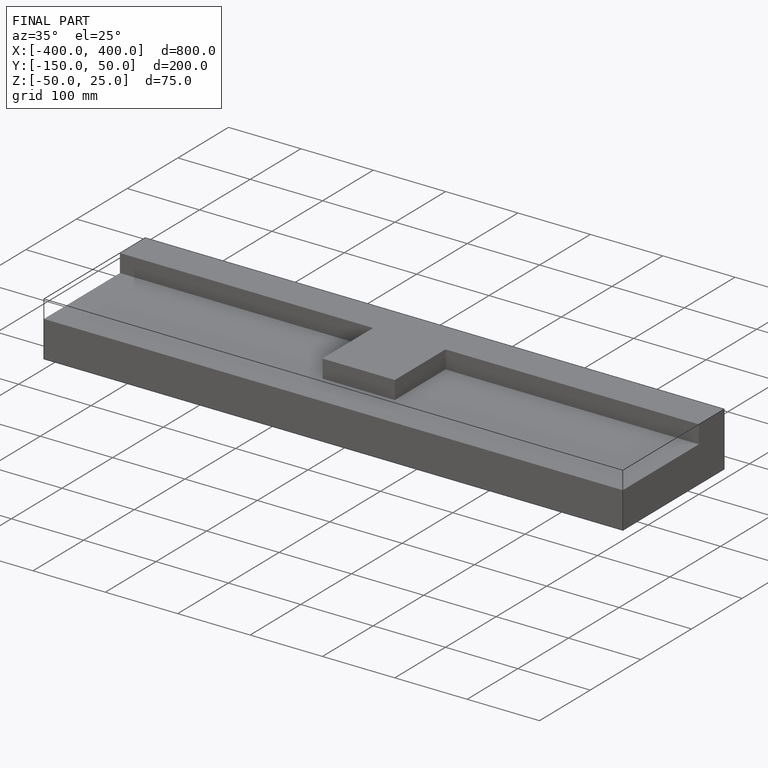
[diagram: finished part — iso view with bounding-box wireframe]
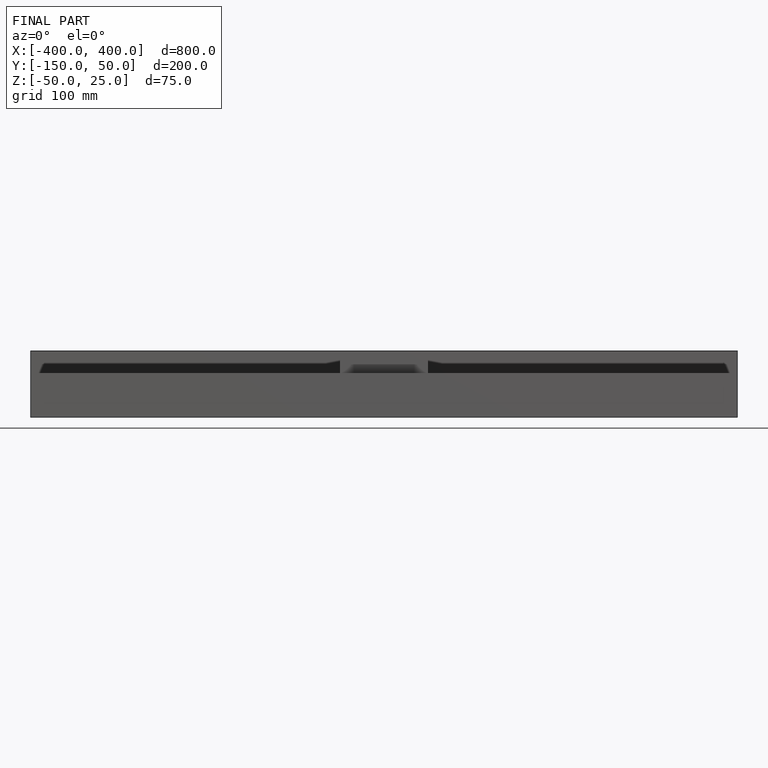
[diagram: finished part — front view with bounding-box wireframe]
